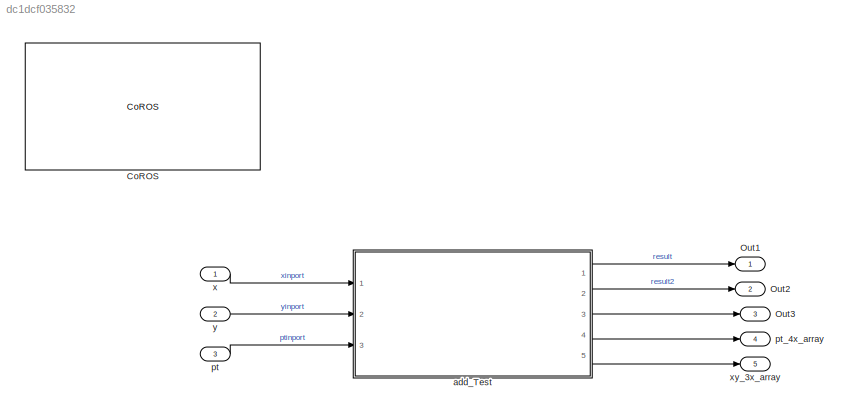
MODEL slx_dc1dcf035832
KIND model
CONFIG AbsTol = auto
CONFIG EnableMultiTasking = on
CONFIG FixedStep = 0.05
CONFIG MaxStep = auto
CONFIG MinStep = auto
CONFIG RelTol = 1e-3
CONFIG SampleTimeConstraint = Unconstrained
CONFIG SolverName = FixedStepDiscrete
CONFIG StartTime = 0.0
CONFIG StopTime = 100
BLOCK [Reference] CoROS  REF=coros_protocol_lib/CoROS
  Ports = []
  SourceBlock = coros_protocol_lib/CoROS
BLOCK [Outport] Out1
  OutDataTypeStr = single
BLOCK [Outport] Out2
  OutDataTypeStr = single
  Port = 2
BLOCK [Outport] Out3
  Port = 3
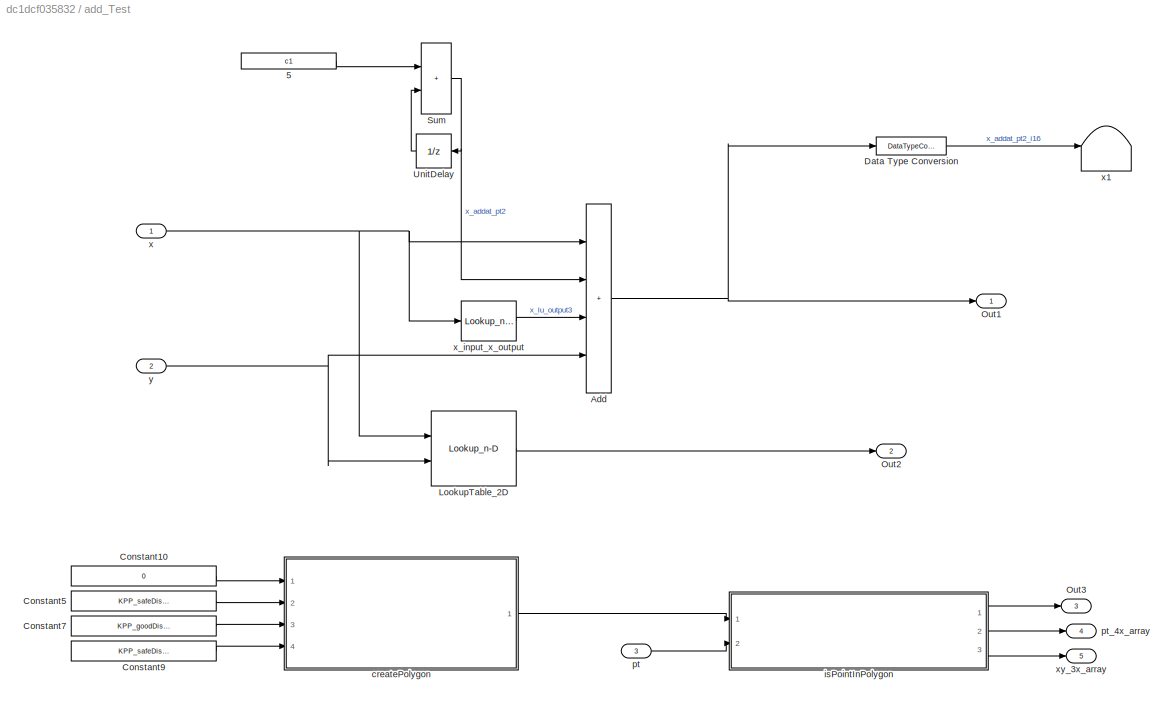
BLOCK [SubSystem] add_Test
  Ports = [3, 5]
  RequestExecContextInheritance = off
  TreatAsAtomicUnit = on
BLOCK [Constant] add_Test/5
  Value = c1
BLOCK [Sum] add_Test/Add
  IconShape = rectangular
  Inputs = ++++
  Ports = [4, 1]
BLOCK [Constant] add_Test/Constant10
  OutDataTypeStr = Bus: Polygon_t
  Value = 0
BLOCK [Constant] add_Test/Constant5
  OutDataTypeStr = single
  Value = KPP_safeDisSideWidth_mm
BLOCK [Constant] add_Test/Constant7
  OutDataTypeStr = single
  Value = KPP_goodDisFrontLen_mm
BLOCK [Constant] add_Test/Constant9
  OutDataTypeStr = single
  Value = KPP_safeDisRearLen_mm
BLOCK [DataTypeConversion] add_Test/Data Type Conversion
  OutDataTypeStr = int16
BLOCK [Lookup_n-D] add_Test/LookupTable_2D
  AttributesFormatString = <X Axis = %<BreakpointsForDimension1>>\n<Y Axis = %<BreakpointsForDimension2>>\n<Table = %<Table>>\n<InterpMethod = %<InterpMethod>; ExtrapMethod = %<ExtrapMethod>; UseLastTableValue: %<UseLastTableValue>>
  BreakpointsForDimension1 = map2d_y
  BreakpointsForDimension2 = map2d_x
  ExtrapMethod = Clip
  InputPortMap = u0,u1
  InputSameDT = off
  IntermediateResultsDataTypeStr = Inherit: Inherit via internal rule
  InternalRulePriority = Speed
  OutDataTypeStr = Inherit: Inherit from 'Table data'
  Ports = [2, 1]
  RndMeth = Zero
  Table = map2d
  TableDataTypeStr = Inherit: Inherit from 'Table data'
  UseLastTableValue = on
BLOCK [Outport] add_Test/Out1
BLOCK [Outport] add_Test/Out2
  Port = 2
BLOCK [Outport] add_Test/Out3
  Port = 3
BLOCK [Sum] add_Test/Sum
  IconShape = rectangular
  Ports = [2, 1]
BLOCK [UnitDelay] add_Test/UnitDelay
  AttributesFormatString = Init: %<X0>
  SampleTime = -1
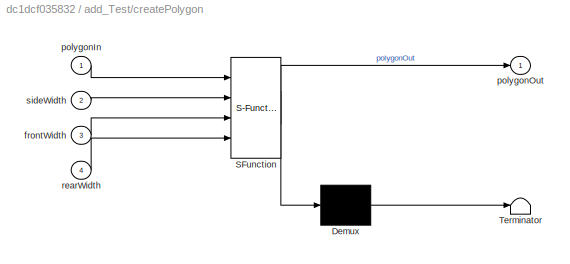
BLOCK [SubSystem] add_Test/createPolygon
  ErrorFcn = Stateflow.Translate.translate
  PermitHierarchicalResolution = ExplicitOnly
  Ports = [4, 1]
  RequestExecContextInheritance = off
  SFBlockType = MATLAB Function
  TreatAsAtomicUnit = on
BLOCK [Demux] add_Test/createPolygon/ Demux 
  Outputs = 1
  Ports = [1, 1]
BLOCK [S-Function] add_Test/createPolygon/ SFunction 
  EnableBusSupport = on
  FunctionName = sf_sfun
  PortCounts = [4 2]
  Ports = [4, 2]
  SFcnIsStateOwnerBlock = off
  SFunctionDeploymentMode = off
  Tag = Stateflow S-Function 6
BLOCK [Terminator] add_Test/createPolygon/ Terminator 
BLOCK [Inport] add_Test/createPolygon/frontWidth
  Port = 3
BLOCK [Inport] add_Test/createPolygon/polygonIn
BLOCK [Outport] add_Test/createPolygon/polygonOut
BLOCK [Inport] add_Test/createPolygon/rearWidth
  Port = 4
BLOCK [Inport] add_Test/createPolygon/sideWidth
  Port = 2
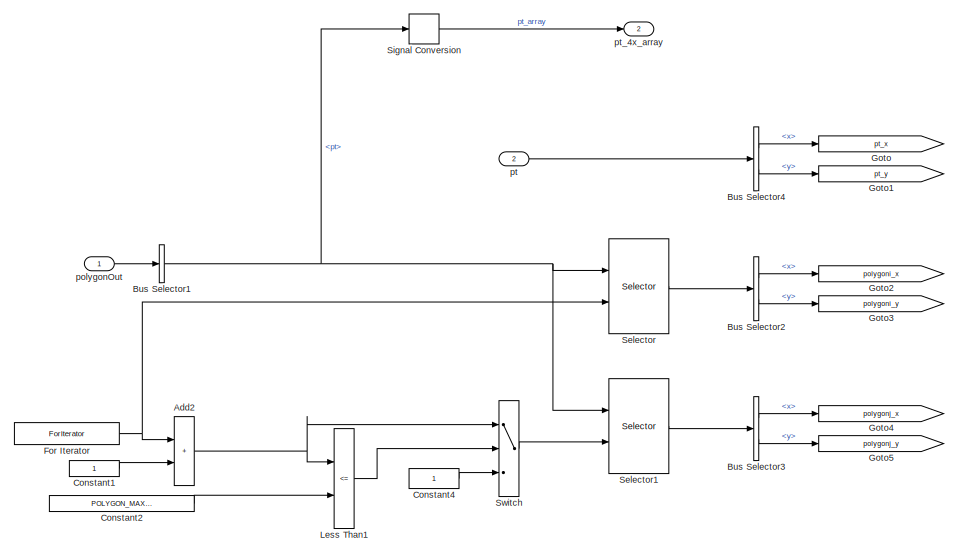
[diagram: add_Test/isPointInPolygon - part 1/3, top left region]
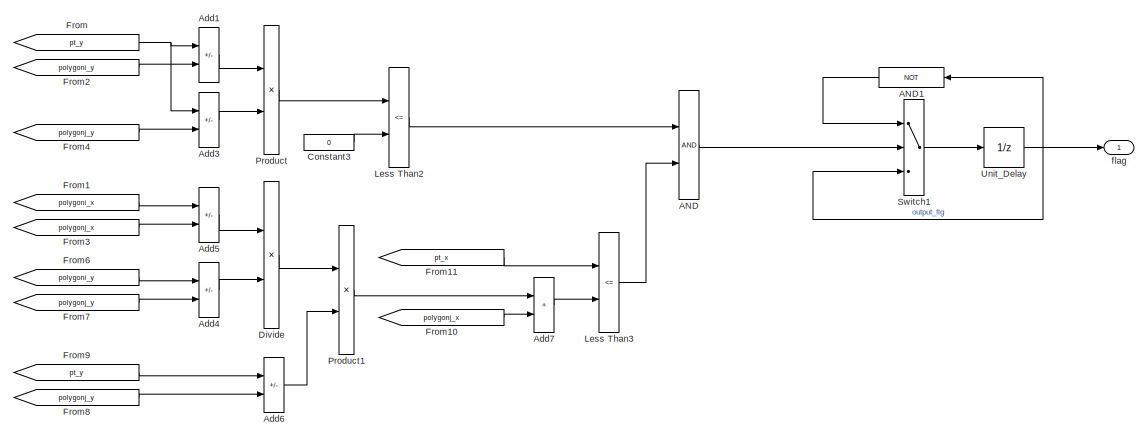
[diagram: add_Test/isPointInPolygon - part 2/3, top right region]
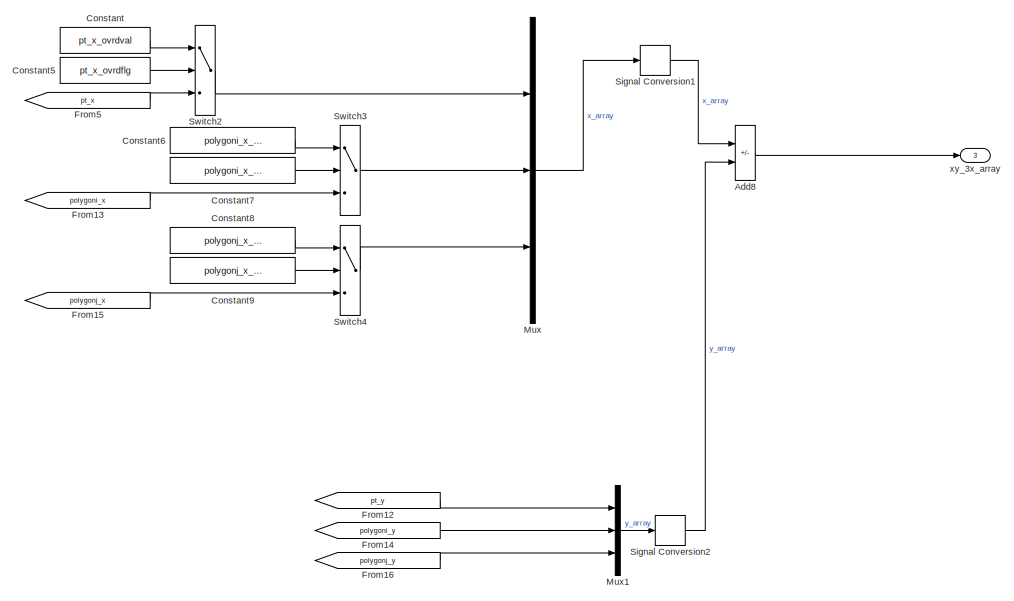
[diagram: add_Test/isPointInPolygon - part 3/3, bottom center region]
BLOCK [SubSystem] add_Test/isPointInPolygon
  Ports = [2, 3]
  RequestExecContextInheritance = off
BLOCK [Logic] add_Test/isPointInPolygon/AND
  AllPortsSameDT = off
  OutDataTypeStr = boolean
  Ports = [2, 1]
BLOCK [Logic] add_Test/isPointInPolygon/AND1
  AllPortsSameDT = off
  NameLocation = top
  Operator = NOT
  OutDataTypeStr = boolean
  Ports = [1, 1]
BLOCK [Sum] add_Test/isPointInPolygon/Add1
  IconShape = rectangular
  Inputs = +-
  Ports = [2, 1]
BLOCK [Sum] add_Test/isPointInPolygon/Add2
  IconShape = rectangular
  Ports = [2, 1]
BLOCK [Sum] add_Test/isPointInPolygon/Add3
  IconShape = rectangular
  Inputs = +-
  Ports = [2, 1]
BLOCK [Sum] add_Test/isPointInPolygon/Add4
  IconShape = rectangular
  Inputs = +-
  Ports = [2, 1]
BLOCK [Sum] add_Test/isPointInPolygon/Add5
  IconShape = rectangular
  Inputs = +-
  Ports = [2, 1]
BLOCK [Sum] add_Test/isPointInPolygon/Add6
  IconShape = rectangular
  Inputs = +-
  Ports = [2, 1]
BLOCK [Sum] add_Test/isPointInPolygon/Add7
  IconShape = rectangular
  Ports = [2, 1]
BLOCK [Sum] add_Test/isPointInPolygon/Add8
  IconShape = rectangular
  Inputs = +-
  Ports = [2, 1]
BLOCK [BusSelector] add_Test/isPointInPolygon/Bus Selector1
  OutputSignals = pt
  Ports = [1, 1]
BLOCK [BusSelector] add_Test/isPointInPolygon/Bus Selector2
  OutputSignals = x,y
  Ports = [1, 2]
BLOCK [BusSelector] add_Test/isPointInPolygon/Bus Selector3
  OutputSignals = x,y
  Ports = [1, 2]
BLOCK [BusSelector] add_Test/isPointInPolygon/Bus Selector4
  OutputSignals = x,y
  Ports = [1, 2]
BLOCK [Constant] add_Test/isPointInPolygon/Constant
  Value = pt_x_ovrdval
BLOCK [Constant] add_Test/isPointInPolygon/Constant1
  OutDataTypeStr = int32
BLOCK [Constant] add_Test/isPointInPolygon/Constant2
  OutDataTypeStr = int32
  Value = POLYGON_MAXITER
BLOCK [Constant] add_Test/isPointInPolygon/Constant3
  OutDataTypeStr = single
  Value = 0
BLOCK [Constant] add_Test/isPointInPolygon/Constant4
  OutDataTypeStr = int32
BLOCK [Constant] add_Test/isPointInPolygon/Constant5
  OutDataTypeStr = boolean
  Value = pt_x_ovrdflg
BLOCK [Constant] add_Test/isPointInPolygon/Constant6
  Value = polygoni_x_ovrdval
BLOCK [Constant] add_Test/isPointInPolygon/Constant7
  OutDataTypeStr = boolean
  Value = polygoni_x_ovrdflg
BLOCK [Constant] add_Test/isPointInPolygon/Constant8
  Value = polygonj_x_ovrdval
BLOCK [Constant] add_Test/isPointInPolygon/Constant9
  OutDataTypeStr = boolean
  Value = polygonj_x_ovrdflg
BLOCK [Product] add_Test/isPointInPolygon/Divide
  Inputs = */
  Ports = [2, 1]
BLOCK [ForIterator] add_Test/isPointInPolygon/For Iterator
  IterationLimit = POLYGON_MAXITER
  Ports = [0, 1]
  ResetStates = reset
BLOCK [From] add_Test/isPointInPolygon/From
  GotoTag = pt_y
BLOCK [From] add_Test/isPointInPolygon/From1
  GotoTag = polygoni_x
BLOCK [From] add_Test/isPointInPolygon/From10
  GotoTag = polygonj_x
BLOCK [From] add_Test/isPointInPolygon/From11
  GotoTag = pt_x
BLOCK [From] add_Test/isPointInPolygon/From12
  GotoTag = pt_y
BLOCK [From] add_Test/isPointInPolygon/From13
  GotoTag = polygoni_x
BLOCK [From] add_Test/isPointInPolygon/From14
  GotoTag = polygoni_y
BLOCK [From] add_Test/isPointInPolygon/From15
  GotoTag = polygonj_x
BLOCK [From] add_Test/isPointInPolygon/From16
  GotoTag = polygonj_y
BLOCK [From] add_Test/isPointInPolygon/From2
  GotoTag = polygoni_y
BLOCK [From] add_Test/isPointInPolygon/From3
  GotoTag = polygonj_x
BLOCK [From] add_Test/isPointInPolygon/From4
  GotoTag = polygonj_y
BLOCK [From] add_Test/isPointInPolygon/From5
  GotoTag = pt_x
BLOCK [From] add_Test/isPointInPolygon/From6
  GotoTag = polygoni_y
BLOCK [From] add_Test/isPointInPolygon/From7
  GotoTag = polygonj_y
BLOCK [From] add_Test/isPointInPolygon/From8
  GotoTag = polygonj_y
BLOCK [From] add_Test/isPointInPolygon/From9
  GotoTag = pt_y
BLOCK [Goto] add_Test/isPointInPolygon/Goto
  GotoTag = pt_x
BLOCK [Goto] add_Test/isPointInPolygon/Goto1
  GotoTag = pt_y
BLOCK [Goto] add_Test/isPointInPolygon/Goto2
  GotoTag = polygoni_x
BLOCK [Goto] add_Test/isPointInPolygon/Goto3
  GotoTag = polygoni_y
BLOCK [Goto] add_Test/isPointInPolygon/Goto4
  GotoTag = polygonj_x
BLOCK [Goto] add_Test/isPointInPolygon/Goto5
  GotoTag = polygonj_y
BLOCK [RelationalOperator] add_Test/isPointInPolygon/Less Than1
  InputSameDT = off
  Operator = <=
  OutDataTypeStr = boolean
  Ports = [2, 1]
  RndMeth = Simplest
BLOCK [RelationalOperator] add_Test/isPointInPolygon/Less Than2
  InputSameDT = off
  Operator = <=
  OutDataTypeStr = boolean
  Ports = [2, 1]
  RndMeth = Simplest
BLOCK [RelationalOperator] add_Test/isPointInPolygon/Less Than3
  InputSameDT = off
  Operator = <=
  OutDataTypeStr = boolean
  Ports = [2, 1]
  RndMeth = Simplest
BLOCK [Mux] add_Test/isPointInPolygon/Mux
  DisplayOption = bar
  Inputs = 3
  Ports = [3, 1]
BLOCK [Mux] add_Test/isPointInPolygon/Mux1
  DisplayOption = bar
  Inputs = 3
  Ports = [3, 1]
BLOCK [Product] add_Test/isPointInPolygon/Product
  Ports = [2, 1]
BLOCK [Product] add_Test/isPointInPolygon/Product1
  Ports = [2, 1]
BLOCK [Selector] add_Test/isPointInPolygon/Selector
  IndexOptions = Starting index (port)
  Indices = [1 3]
  OutputSizes = 1
  Ports = [2, 1]
BLOCK [Selector] add_Test/isPointInPolygon/Selector1
  IndexOptions = Starting index (port)
  Indices = [1 3]
  OutputSizes = 1
  Ports = [2, 1]
BLOCK [SignalConversion] add_Test/isPointInPolygon/Signal Conversion
  OverrideOpt = off
BLOCK [SignalConversion] add_Test/isPointInPolygon/Signal Conversion1
  OverrideOpt = off
BLOCK [SignalConversion] add_Test/isPointInPolygon/Signal Conversion2
  OverrideOpt = off
BLOCK [Switch] add_Test/isPointInPolygon/Switch
  AttributesFormatString = <%<Criteria>>
  Criteria = u2 ~= 0
  InputSameDT = off
  RndMeth = Zero
  SaturateOnIntegerOverflow = off
BLOCK [Switch] add_Test/isPointInPolygon/Switch1
  AttributesFormatString = <%<Criteria>>
  Criteria = u2 ~= 0
  InputSameDT = off
  RndMeth = Zero
  SaturateOnIntegerOverflow = off
BLOCK [Switch] add_Test/isPointInPolygon/Switch2
  Criteria = u2 ~= 0
BLOCK [Switch] add_Test/isPointInPolygon/Switch3
  Criteria = u2 ~= 0
BLOCK [Switch] add_Test/isPointInPolygon/Switch4
  Criteria = u2 ~= 0
BLOCK [UnitDelay] add_Test/isPointInPolygon/Unit_Delay
  AttributesFormatString = <init value = %<InitialCondition>>\n<sample time = %<SampleTime>>
  HasFrameUpgradeWarning = on
  InitialCondition = false
  SampleTime = -1
BLOCK [Outport] add_Test/isPointInPolygon/flag
BLOCK [Inport] add_Test/isPointInPolygon/polygonOut
BLOCK [Inport] add_Test/isPointInPolygon/pt
  Port = 2
BLOCK [Outport] add_Test/isPointInPolygon/pt_4x_array
  Port = 2
BLOCK [Outport] add_Test/isPointInPolygon/xy_3x_array
  Port = 3
BLOCK [Inport] add_Test/pt
  Port = 3
BLOCK [Outport] add_Test/pt_4x_array
  Port = 4
BLOCK [Inport] add_Test/x
BLOCK [Terminator] add_Test/x1
BLOCK [Lookup_n-D] add_Test/x_input_x_output
  BreakpointsForDimension1 = x_input
  InputPortMap = u0
  InternalRulePriority = Speed
  NumberOfTableDimensions = 1
  Ports = [1, 1]
  RndMeth = Simplest
  Table = x_output
BLOCK [Outport] add_Test/xy_3x_array
  Port = 5
BLOCK [Inport] add_Test/y
  Port = 2
BLOCK [Inport] pt
  OutDataTypeStr = Bus: point_t
  Port = 3
BLOCK [Outport] pt_4x_array
  Port = 4
BLOCK [Inport] x
  OutDataTypeStr = single
BLOCK [Outport] xy_3x_array
  Port = 5
BLOCK [Inport] y
  OutDataTypeStr = single
  Port = 2
LINE add_Test/5:1 -> add_Test/Sum:1
NET add_Test/Add:1 -> add_Test/Data Type Conversion:1, add_Test/Out1:1
LINE add_Test/Constant10:1 -> add_Test/createPolygon:1
LINE add_Test/Constant5:1 -> add_Test/createPolygon:2
LINE add_Test/Constant7:1 -> add_Test/createPolygon:3
LINE add_Test/Constant9:1 -> add_Test/createPolygon:4
LINE add_Test/Data Type Conversion:1 -> add_Test/x1:1
LINE add_Test/LookupTable_2D:1 -> add_Test/Out2:1
NET add_Test/Sum:1 -> add_Test/Add:2, add_Test/UnitDelay:1
LINE add_Test/UnitDelay:1 -> add_Test/Sum:2
LINE add_Test/createPolygon:1 -> add_Test/isPointInPolygon:1
LINE add_Test/isPointInPolygon/AND1:1 -> add_Test/isPointInPolygon/Switch1:1
LINE add_Test/isPointInPolygon/AND:1 -> add_Test/isPointInPolygon/Switch1:2
LINE add_Test/isPointInPolygon/Add1:1 -> add_Test/isPointInPolygon/Product:1
NET add_Test/isPointInPolygon/Add2:1 -> add_Test/isPointInPolygon/Less Than1:1, add_Test/isPointInPolygon/Switch:1
LINE add_Test/isPointInPolygon/Add3:1 -> add_Test/isPointInPolygon/Product:2
LINE add_Test/isPointInPolygon/Add4:1 -> add_Test/isPointInPolygon/Divide:2
LINE add_Test/isPointInPolygon/Add5:1 -> add_Test/isPointInPolygon/Divide:1
LINE add_Test/isPointInPolygon/Add6:1 -> add_Test/isPointInPolygon/Product1:2
LINE add_Test/isPointInPolygon/Add7:1 -> add_Test/isPointInPolygon/Less Than3:2
LINE add_Test/isPointInPolygon/Add8:1 -> add_Test/isPointInPolygon/xy_3x_array:1
NET add_Test/isPointInPolygon/Bus Selector1:1 -> add_Test/isPointInPolygon/Selector1:1, add_Test/isPointInPolygon/Selector:1, add_Test/isPointInPolygon/Signal Conversion:1
LINE add_Test/isPointInPolygon/Bus Selector2:1 -> add_Test/isPointInPolygon/Goto2:1
LINE add_Test/isPointInPolygon/Bus Selector2:2 -> add_Test/isPointInPolygon/Goto3:1
LINE add_Test/isPointInPolygon/Bus Selector3:1 -> add_Test/isPointInPolygon/Goto4:1
LINE add_Test/isPointInPolygon/Bus Selector3:2 -> add_Test/isPointInPolygon/Goto5:1
LINE add_Test/isPointInPolygon/Bus Selector4:1 -> add_Test/isPointInPolygon/Goto:1
LINE add_Test/isPointInPolygon/Bus Selector4:2 -> add_Test/isPointInPolygon/Goto1:1
LINE add_Test/isPointInPolygon/Constant1:1 -> add_Test/isPointInPolygon/Add2:2
LINE add_Test/isPointInPolygon/Constant2:1 -> add_Test/isPointInPolygon/Less Than1:2
LINE add_Test/isPointInPolygon/Constant3:1 -> add_Test/isPointInPolygon/Less Than2:2
LINE add_Test/isPointInPolygon/Constant4:1 -> add_Test/isPointInPolygon/Switch:3
LINE add_Test/isPointInPolygon/Constant5:1 -> add_Test/isPointInPolygon/Switch2:2
LINE add_Test/isPointInPolygon/Constant6:1 -> add_Test/isPointInPolygon/Switch3:1
LINE add_Test/isPointInPolygon/Constant7:1 -> add_Test/isPointInPolygon/Switch3:2
LINE add_Test/isPointInPolygon/Constant8:1 -> add_Test/isPointInPolygon/Switch4:1
LINE add_Test/isPointInPolygon/Constant9:1 -> add_Test/isPointInPolygon/Switch4:2
LINE add_Test/isPointInPolygon/Constant:1 -> add_Test/isPointInPolygon/Switch2:1
LINE add_Test/isPointInPolygon/Divide:1 -> add_Test/isPointInPolygon/Product1:1
NET add_Test/isPointInPolygon/For Iterator:1 -> add_Test/isPointInPolygon/Add2:1, add_Test/isPointInPolygon/Selector:2
LINE add_Test/isPointInPolygon/From10:1 -> add_Test/isPointInPolygon/Add7:2
LINE add_Test/isPointInPolygon/From11:1 -> add_Test/isPointInPolygon/Less Than3:1
LINE add_Test/isPointInPolygon/From12:1 -> add_Test/isPointInPolygon/Mux1:1
LINE add_Test/isPointInPolygon/From13:1 -> add_Test/isPointInPolygon/Switch3:3
LINE add_Test/isPointInPolygon/From14:1 -> add_Test/isPointInPolygon/Mux1:2
LINE add_Test/isPointInPolygon/From15:1 -> add_Test/isPointInPolygon/Switch4:3
LINE add_Test/isPointInPolygon/From16:1 -> add_Test/isPointInPolygon/Mux1:3
LINE add_Test/isPointInPolygon/From1:1 -> add_Test/isPointInPolygon/Add5:1
LINE add_Test/isPointInPolygon/From2:1 -> add_Test/isPointInPolygon/Add1:2
LINE add_Test/isPointInPolygon/From3:1 -> add_Test/isPointInPolygon/Add5:2
LINE add_Test/isPointInPolygon/From4:1 -> add_Test/isPointInPolygon/Add3:2
LINE add_Test/isPointInPolygon/From5:1 -> add_Test/isPointInPolygon/Switch2:3
LINE add_Test/isPointInPolygon/From6:1 -> add_Test/isPointInPolygon/Add4:1
LINE add_Test/isPointInPolygon/From7:1 -> add_Test/isPointInPolygon/Add4:2
LINE add_Test/isPointInPolygon/From8:1 -> add_Test/isPointInPolygon/Add6:2
LINE add_Test/isPointInPolygon/From9:1 -> add_Test/isPointInPolygon/Add6:1
NET add_Test/isPointInPolygon/From:1 -> add_Test/isPointInPolygon/Add1:1, add_Test/isPointInPolygon/Add3:1
LINE add_Test/isPointInPolygon/Less Than1:1 -> add_Test/isPointInPolygon/Switch:2
LINE add_Test/isPointInPolygon/Less Than2:1 -> add_Test/isPointInPolygon/AND:1
LINE add_Test/isPointInPolygon/Less Than3:1 -> add_Test/isPointInPolygon/AND:2
LINE add_Test/isPointInPolygon/Mux1:1 -> add_Test/isPointInPolygon/Signal Conversion2:1
LINE add_Test/isPointInPolygon/Mux:1 -> add_Test/isPointInPolygon/Signal Conversion1:1
LINE add_Test/isPointInPolygon/Product1:1 -> add_Test/isPointInPolygon/Add7:1
LINE add_Test/isPointInPolygon/Product:1 -> add_Test/isPointInPolygon/Less Than2:1
LINE add_Test/isPointInPolygon/Selector1:1 -> add_Test/isPointInPolygon/Bus Selector3:1
LINE add_Test/isPointInPolygon/Selector:1 -> add_Test/isPointInPolygon/Bus Selector2:1
LINE add_Test/isPointInPolygon/Signal Conversion1:1 -> add_Test/isPointInPolygon/Add8:1
LINE add_Test/isPointInPolygon/Signal Conversion2:1 -> add_Test/isPointInPolygon/Add8:2
LINE add_Test/isPointInPolygon/Signal Conversion:1 -> add_Test/isPointInPolygon/pt_4x_array:1
LINE add_Test/isPointInPolygon/Switch1:1 -> add_Test/isPointInPolygon/Unit_Delay:1
LINE add_Test/isPointInPolygon/Switch2:1 -> add_Test/isPointInPolygon/Mux:1
LINE add_Test/isPointInPolygon/Switch3:1 -> add_Test/isPointInPolygon/Mux:2
LINE add_Test/isPointInPolygon/Switch4:1 -> add_Test/isPointInPolygon/Mux:3
LINE add_Test/isPointInPolygon/Switch:1 -> add_Test/isPointInPolygon/Selector1:2
NET add_Test/isPointInPolygon/Unit_Delay:1 -> add_Test/isPointInPolygon/AND1:1, add_Test/isPointInPolygon/Switch1:3, add_Test/isPointInPolygon/flag:1
LINE add_Test/isPointInPolygon/polygonOut:1 -> add_Test/isPointInPolygon/Bus Selector1:1
LINE add_Test/isPointInPolygon/pt:1 -> add_Test/isPointInPolygon/Bus Selector4:1
LINE add_Test/isPointInPolygon:1 -> add_Test/Out3:1
LINE add_Test/isPointInPolygon:2 -> add_Test/pt_4x_array:1
LINE add_Test/isPointInPolygon:3 -> add_Test/xy_3x_array:1
LINE add_Test/pt:1 -> add_Test/isPointInPolygon:2
NET add_Test/x:1 -> add_Test/Add:1, add_Test/LookupTable_2D:1, add_Test/x_input_x_output:1
LINE add_Test/x_input_x_output:1 -> add_Test/Add:3
NET add_Test/y:1 -> add_Test/Add:4, add_Test/LookupTable_2D:2
LINE add_Test:1 -> Out1:1
LINE add_Test:2 -> Out2:1
LINE add_Test:3 -> Out3:1
LINE add_Test:4 -> pt_4x_array:1
LINE add_Test:5 -> xy_3x_array:1
LINE pt:1 -> add_Test:3
LINE x:1 -> add_Test:1
LINE y:1 -> add_Test:2
note: NET lines group one-source signal fan-out (src -> all destinations, sorted); 1:1 wires keep LINE
CHART add_Test/createPolygon states=1 transitions=1
  STATE_LABEL 'eML_blk_kernel()'
  STATE_LABEL 'SCRIPT:\nfunction polygonOut = createPolygon(polygonIn, sideWidth, frontWidth, rearWidth)\n    polygonOut = polygonIn;\n    polygonOut.ptNum = int32(4);\n    polygonOut.pt(1).x = - CAR.RearOH - rearWidth;\n    polygonOut.pt(1).y = - CAR.HalfWidth - sideWidth;\n    polygonOut.pt(2).x =   CAR.FrontOH + CAR.AxisLen + frontWidth;\n    polygonOut.pt(2).y = - CAR.HalfWidth - sideWidth;\n    polygonOut.pt(3).x =...<+205ch>'
CHART  states=0 transitions=0
